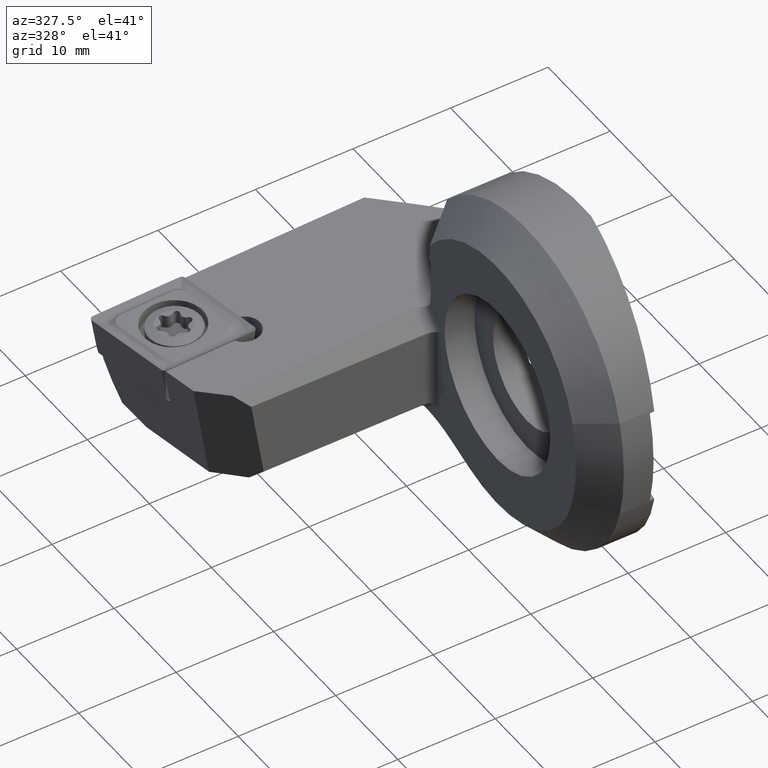
[diagram: clean part render]
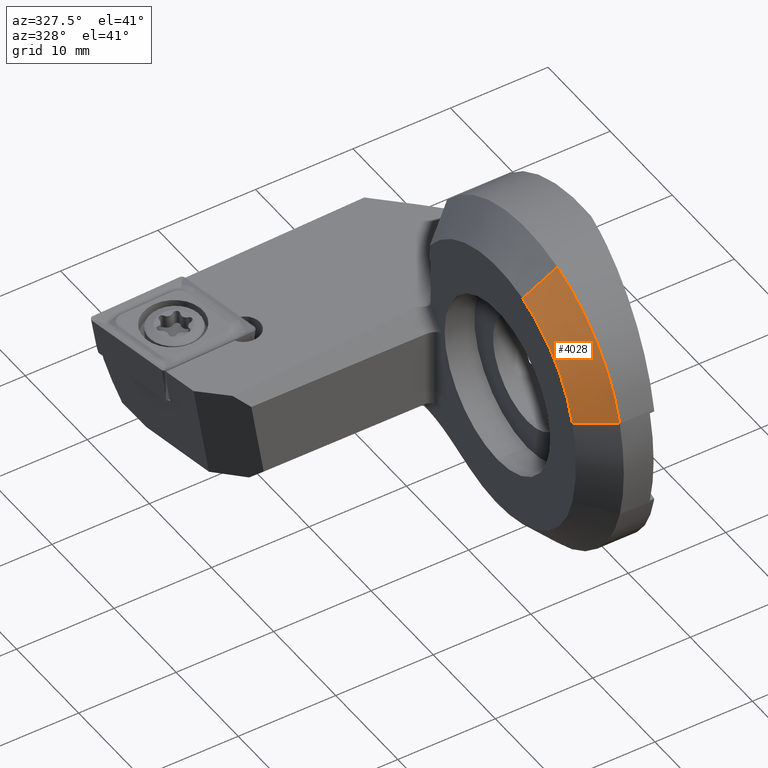
[diagram: same view with one face highlighted and labeled with its STEP entity id]
A machine part, auxiliary view. The second image highlights one B-rep face of the part: STEP entity #4028.
In plain terms, the highlighted conical surface has half-angle 45 deg.
Its self-contained STEP definition (entity closure, byte-faithful):
#92 = CARTESIAN_POINT ( 'NONE',  ( -7.049999999999995400, -0.4632075471698108800, 1.479168269077232100 ) ) ;
#211 = CARTESIAN_POINT ( 'NONE',  ( -3.049999999999979000, -0.4632075471698104400, 1.479168269077232100 ) ) ;
#426 = CONICAL_SURFACE ( 'NONE', #765, 16.00000000000001400, 0.7853981633974466100 ) ;
#765 = AXIS2_PLACEMENT_3D ( 'NONE', #211, #3798, #3109 ) ;
#1046 = FACE_OUTER_BOUND ( 'NONE', #2968, .T. ) ;
#1090 = AXIS2_PLACEMENT_3D ( 'NONE', #92, #4045, #3668 ) ;
#1229 = CARTESIAN_POINT ( 'NONE',  ( -7.049999999999995400, -4.049330493000598000, 12.93079357806225000 ) ) ;
#1288 = CARTESIAN_POINT ( 'NONE',  ( -7.049999999999993600, -12.08648327255431500, 4.462364778140559100 ) ) ;
#1559 = CARTESIAN_POINT ( 'NONE',  ( -7.049999999999993600, -12.08648327255431500, 4.462364778140559100 ) ) ;
#1595 = VERTEX_POINT ( 'NONE', #2987 ) ;
#1605 = ORIENTED_EDGE ( 'NONE', *, *, #3017, .F. ) ;
#1798 = DIRECTION ( 'NONE',  ( 1.000000000000000000, 1.182766006347821900E-016, -0.0000000000000000000 ) ) ;
#1800 = ORIENTED_EDGE ( 'NONE', *, *, #2156, .F. ) ;
#1932 = CARTESIAN_POINT ( 'NONE',  ( -4.049999999999992700, -14.99230220390042800, 5.208163905406388800 ) ) ;
#1987 = LINE ( 'NONE', #1288, #3326 ) ;
#2156 = EDGE_CURVE ( 'NONE', #2490, #3946, #1987, .T. ) ;
#2212 = LINE ( 'NONE', #1229, #4395 ) ;
#2390 = DIRECTION ( 'NONE',  ( -0.7071067811865487900, 0.6849080904183622000, -0.1757865400975591500 ) ) ;
#2490 = VERTEX_POINT ( 'NONE', #1932 ) ;
#2955 = EDGE_CURVE ( 'NONE', #1595, #2490, #4442, .T. ) ;
#2968 = EDGE_LOOP ( 'NONE', ( #3664, #1605, #1800, #3184 ) ) ;
#2987 = CARTESIAN_POINT ( 'NONE',  ( -4.049999999999990900, -4.945861229458292200, 15.79369990530849700 ) ) ;
#3017 = EDGE_CURVE ( 'NONE', #3946, #4033, #3376, .T. ) ;
#3109 = DIRECTION ( 'NONE',  ( -1.084202172485503400E-016, 1.000000000000000000, 0.0000000000000000000 ) ) ;
#3147 = EDGE_CURVE ( 'NONE', #1595, #4033, #2212, .T. ) ;
#3184 = ORIENTED_EDGE ( 'NONE', *, *, #2955, .F. ) ;
#3326 = VECTOR ( 'NONE', #2390, 1000.000000000000200 ) ;
#3376 = CIRCLE ( 'NONE', #1090, 12.00000000000001100 ) ;
#3664 = ORIENTED_EDGE ( 'NONE', *, *, #3147, .T. ) ;
#3668 = DIRECTION ( 'NONE',  ( 1.445602896647337900E-016, -1.000000000000000000, 0.0000000000000000000 ) ) ;
#3798 = DIRECTION ( 'NONE',  ( 1.000000000000000000, 1.182766006347821900E-016, -0.0000000000000000000 ) ) ;
#3811 = AXIS2_PLACEMENT_3D ( 'NONE', #3944, #1798, #4298 ) ;
#3944 = CARTESIAN_POINT ( 'NONE',  ( -4.049999999999993600, -0.4632075471698105500, 1.479168269077232100 ) ) ;
#3946 = VERTEX_POINT ( 'NONE', #1559 ) ;
#4028 = ADVANCED_FACE ( 'NONE', ( #1046 ), #426, .T. ) ;
#4033 = VERTEX_POINT ( 'NONE', #4090 ) ;
#4045 = DIRECTION ( 'NONE',  ( -1.000000000000000000, -1.182766006347821900E-016, 0.0000000000000000000 ) ) ;
#4071 = DIRECTION ( 'NONE',  ( -0.7071067811865486800, 0.2113143210971348800, -0.6747934926325647200 ) ) ;
#4090 = CARTESIAN_POINT ( 'NONE',  ( -7.049999999999995400, -4.049330493000598000, 12.93079357806225000 ) ) ;
#4298 = DIRECTION ( 'NONE',  ( -1.156482317317871200E-016, 1.000000000000000000, 0.0000000000000000000 ) ) ;
#4395 = VECTOR ( 'NONE', #4071, 1000.000000000000100 ) ;
#4442 = CIRCLE ( 'NONE', #3811, 15.00000000000000400 ) ;